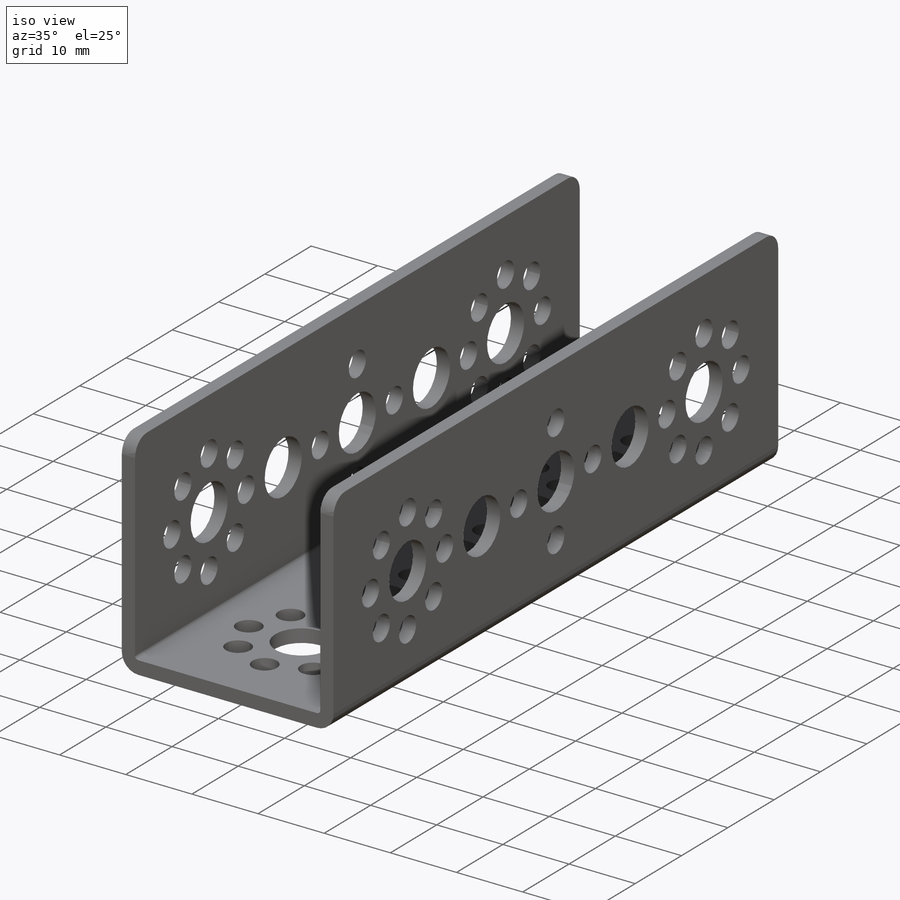
[diagram: iso view]
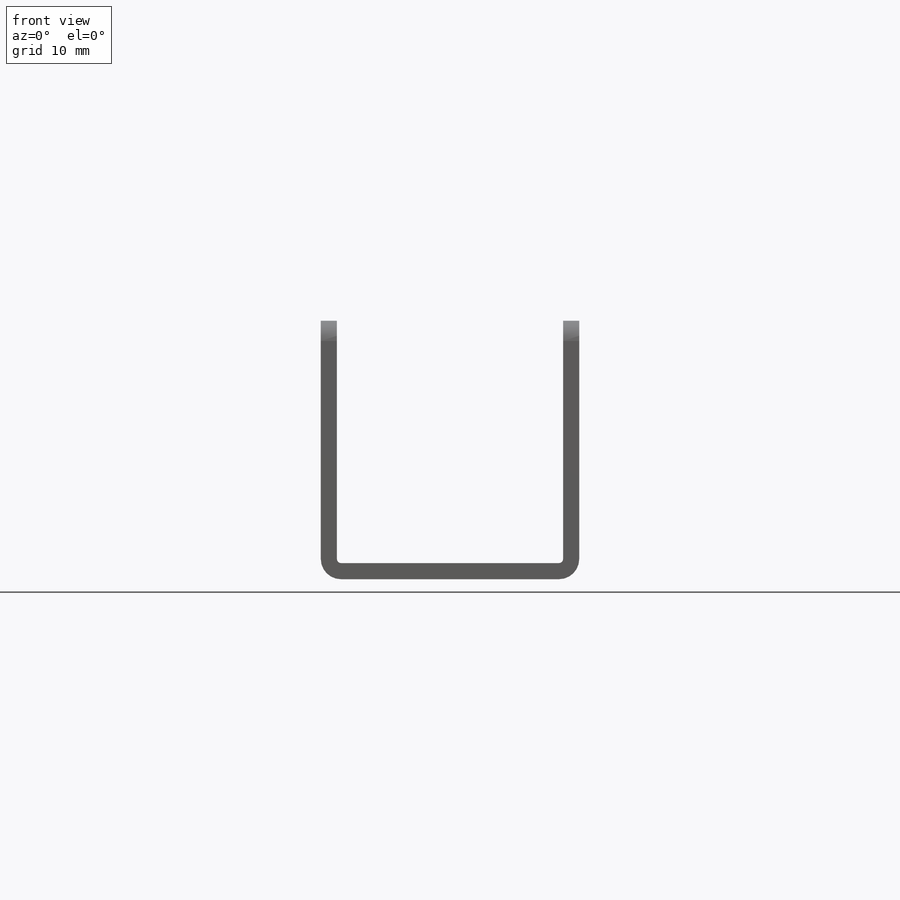
[diagram: front view]
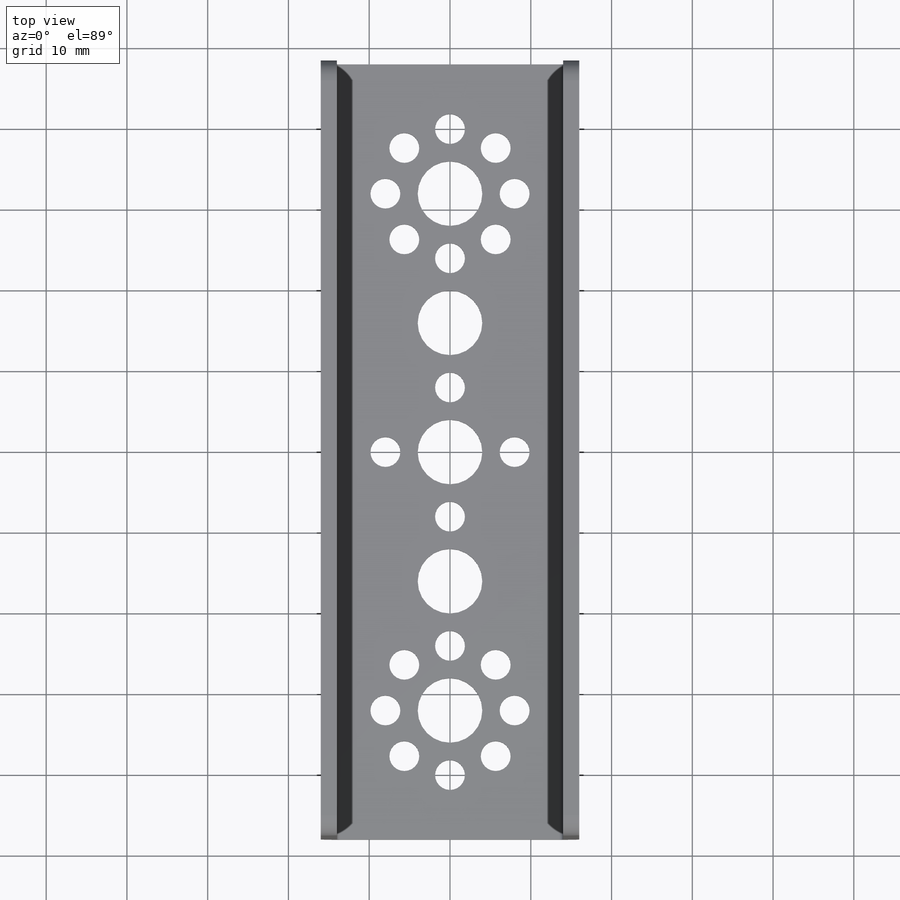
[diagram: top view]
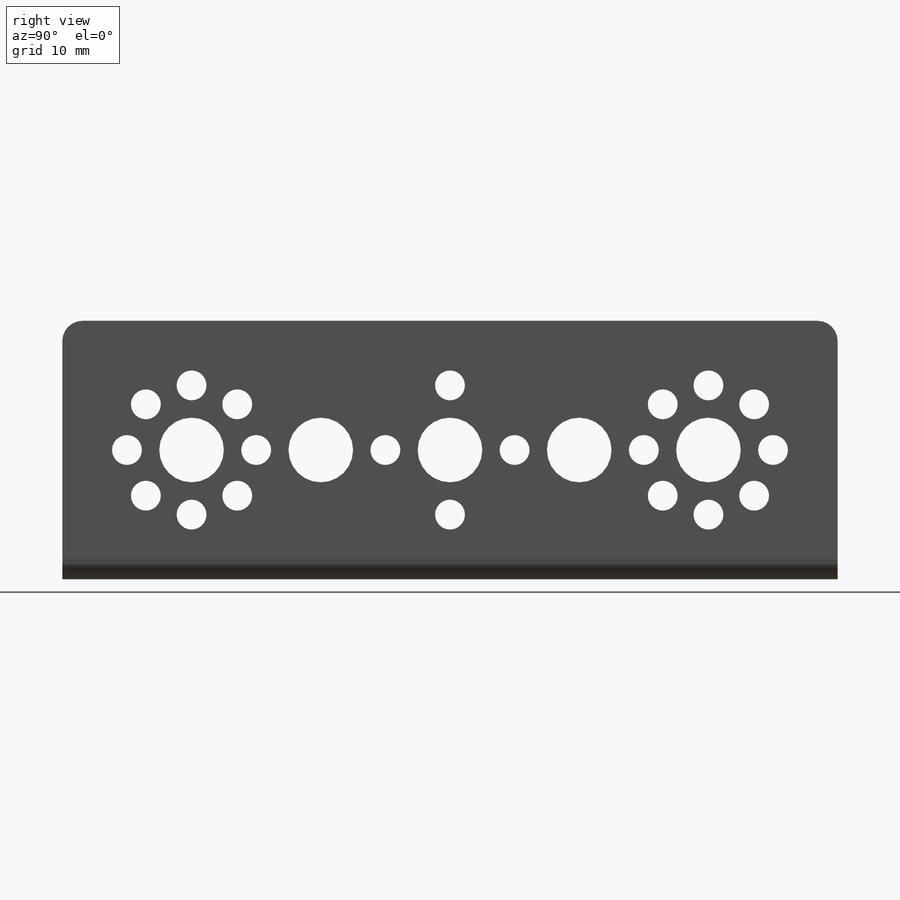
[diagram: right view]
SOLIDWORKS PART (.sldprt)
format: sldprt  version: not decoded by parser v0  size: 811,008 bytes
history: native  units: mm
features: sketch x7, cut_extrude x6, fillet x4, pattern_circular x4, material x1, extrude x1, pattern_linear x1, mirror x1 (+17 scaffold rows collapsed)
feature tree (42):
  scaffold x17  (default folders/planes/origin — collapsed)
  material  "5052 Alloy"
  sketch  "Sketch1"  dims[c1.D7=2.5mm c1.D8=0.5mm c1.D1=32.0mm c1.D2=2.0mm c1.D3=2.0mm c1.D4=2.0mm c1.D5=32.0mm c1.D6=32.0mm c2.D7=28.0mm c2.D1=32.0mm c2.D5=32.0mm]
  extrude  "Extrude1"  Depth=96mm
  fillet  "Fillet1"  Radius=2.5mm
  sketch  "Sketch2"  dims[D1=3.7mm D2=8.0mm D3=16.0mm]
  cut_extrude  "Cut-Extrude1"  [1 undecoded]
  sketch  "Sketch3"
  fillet  "Block-Tetrix Hole Pattern - 8x8x3.7-4"  Radius=16mm
  cut_extrude  "Cut-Extrude3"  [1 undecoded]
  cut_extrude  "Cut-Extrude4"  [1 undecoded]
  sketch  "Sketch3<3>"
  cut_extrude  "Cut-Extrude2"  [1 undecoded]
  sketch  "Sketch2<4>"
  pattern_linear  "LPattern1"  Count1=3 Count2=3 Spacing1=16mm Spacing2=16mm
  pattern_circular  "CirPattern1"  Count=4 Angle=90deg
  pattern_circular  "CirPattern3"  Count=4 Angle=90deg
  sketch  "Sketch4"
  fillet  "Block-Tetrix Hole Pattern - 8x8x3.7-7"  [1 undecoded]
  sketch  "Sketch5"
  fillet  "Block-Tetrix Hole Pattern - 8x8x3.7-10"  [1 undecoded]
  cut_extrude  "Cut-Extrude5"  [1 undecoded]
  cut_extrude  "Cut-Extrude6"  [1 undecoded]
  pattern_circular  "CirPattern5"  Count=8 Angle=45deg
  pattern_circular  "CirPattern6"  Count=8 Angle=45deg
  mirror  "Mirror2"
decode coverage: 10 of 24 modeling features carry decoded parameters
note: 8 parameter values undecoded
summary: no parameter record found for 8 features
note: suppression state not decoded; provenance and decode notes live in map.json
